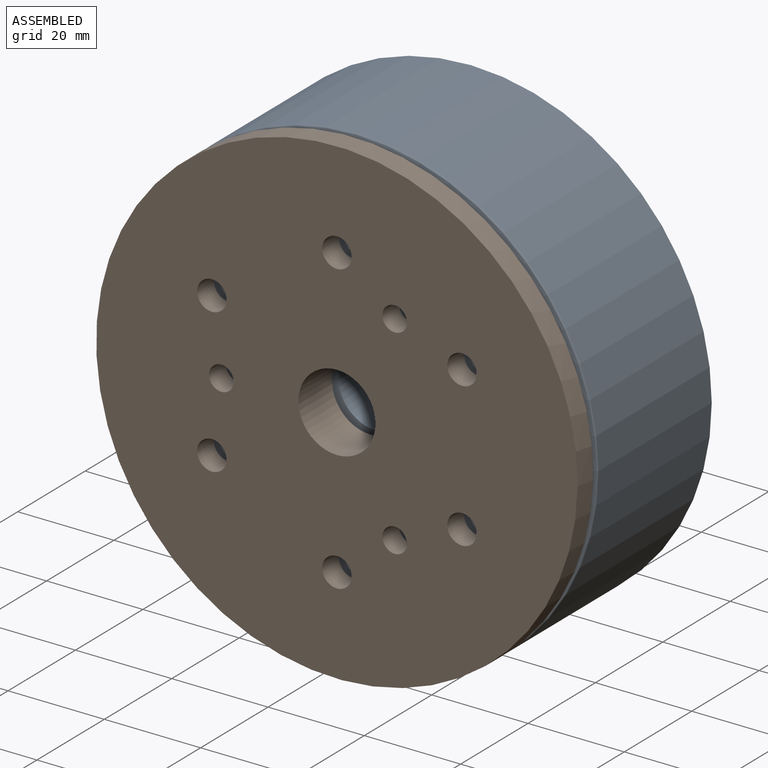
[diagram: assembled view]
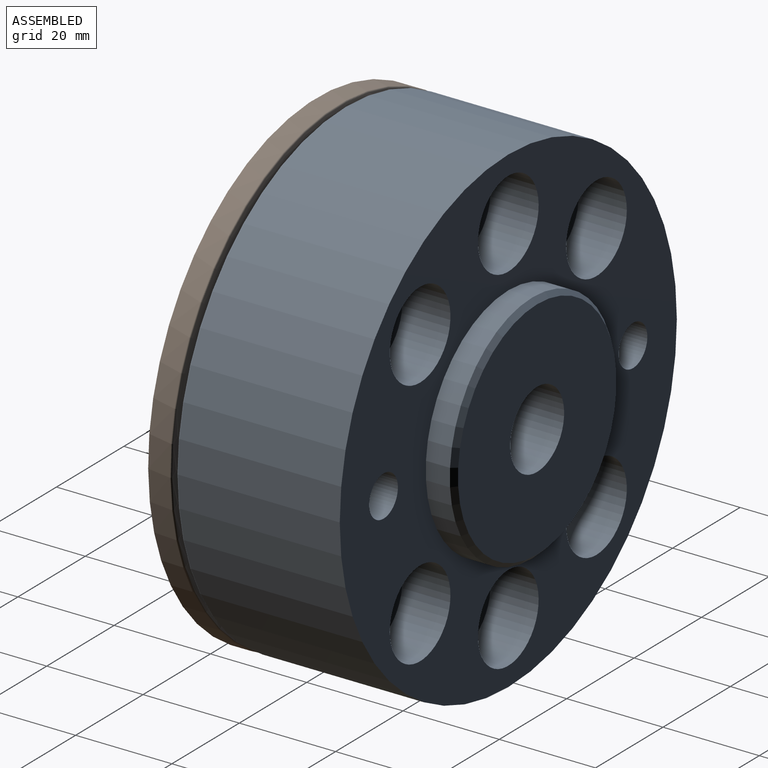
[diagram: assembled view, second angle]
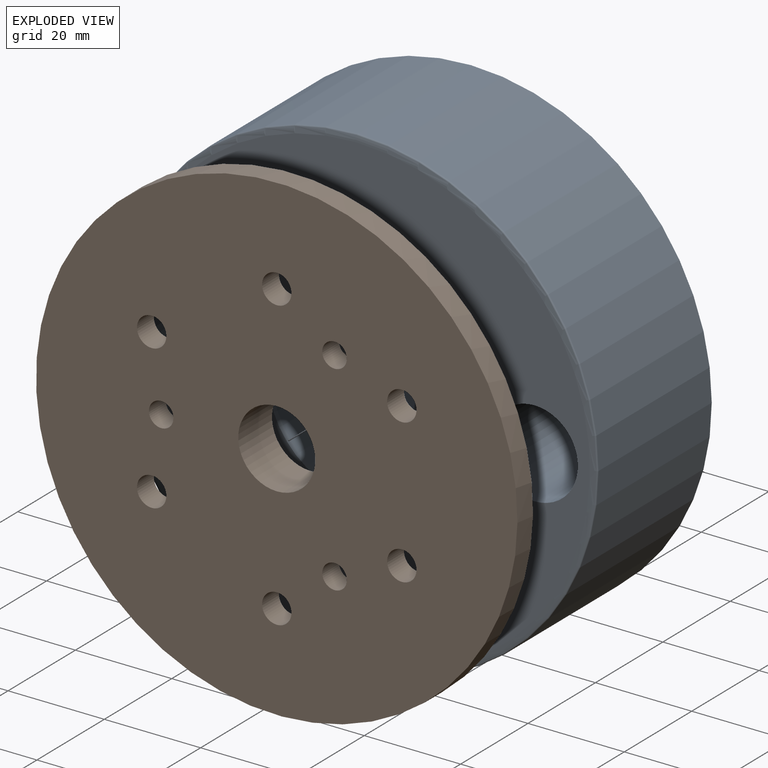
[diagram: exploded view]
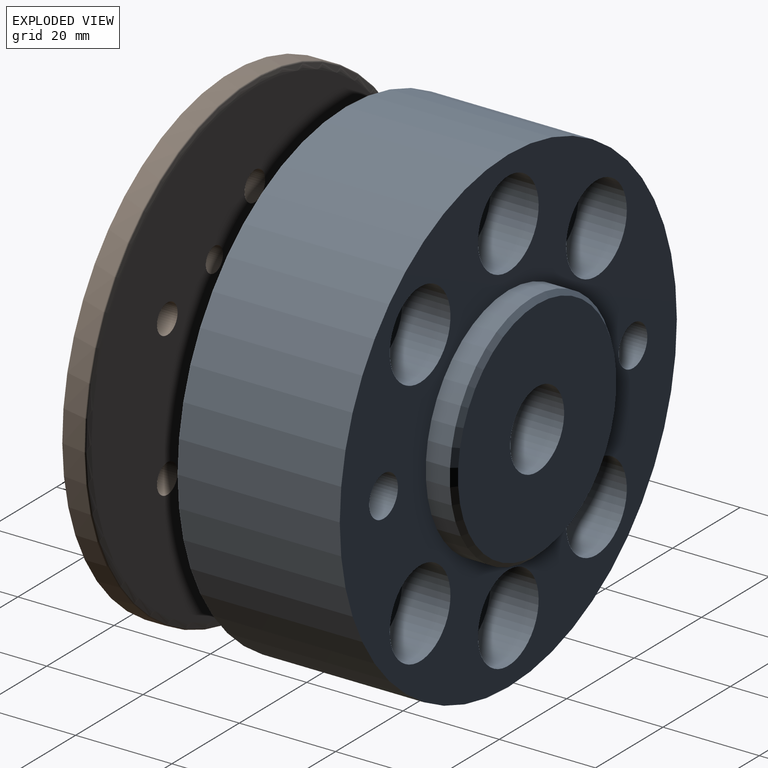
[diagram: exploded view, second angle]
ASSEMBLY  parts=2 mates=2
PART A: 48 faces, bbox 112.7x40x112.7 mm
  f0: cone r=0mm half-angle=59deg, axis (0,1,0), area 16.2mm2, adj f1
  f1: cylinder r=2.1mm len=11.6mm, axis (0,1,0), area 153.1mm2, adj f0,f29
  f2: cone r=0mm half-angle=59deg, axis (0,1,0), area 16.2mm2, adj f3
  f3: cylinder r=2.1mm len=11.6mm, axis (0,1,0), area 153.1mm2, adj f2,f29
  f4: cylinder r=4.25mm len=13mm, axis (0,1,0), area 347.1mm2, adj f5,f28
  f5: plane 18x18mm, normal (0,1,0), area 197.7mm2, adj f4,f6
  f6: cylinder r=9mm len=21mm, axis (0,1,0), area 1187.5mm2, adj f5,f29
  f7: cylinder r=9mm len=18mm, axis (0,-1,0), area 565.5mm2, adj f8,f28
  f8: plane 18x18mm, normal (0,-1,0), area 254.5mm2, adj f7
  f9: cylinder r=9mm len=18mm, axis (0,-1,0), area 565.5mm2, adj f10,f28
  f10: plane 18x18mm, normal (0,-1,0), area 254.5mm2, adj f9
  f11: cylinder r=9mm len=18mm, axis (0,-1,0), area 565.5mm2, adj f12,f28
  f12: plane 18x18mm, normal (0,-1,0), area 254.5mm2, adj f11
  f13: cylinder r=9mm len=18mm, axis (0,-1,0), area 565.5mm2, adj f14,f28
  f14: plane 18x18mm, normal (0,-1,0), area 254.5mm2, adj f13
  f15: cylinder r=9mm len=18mm, axis (0,-1,0), area 565.5mm2, adj f16,f28
  f16: plane 18x18mm, normal (0,-1,0), area 254.5mm2, adj f15
  f17: cone r=0mm half-angle=59deg, axis (0,1,0), area 22.9mm2, adj f18
  f18: cylinder r=2.5mm len=12mm, axis (0,1,0), area 188.5mm2, adj f17,f29
  f19: cone r=0mm half-angle=59deg, axis (0,1,0), area 22.9mm2, adj f20
  f20: cylinder r=2.5mm len=12mm, axis (0,1,0), area 188.5mm2, adj f19,f29
  f21: cone r=0mm half-angle=59deg, axis (0,1,0), area 22.9mm2, adj f22
  f22: cylinder r=2.5mm len=12mm, axis (0,1,0), area 188.5mm2, adj f21,f29
  f23: cone r=0mm half-angle=59deg, axis (0,1,0), area 22.9mm2, adj f24
  f24: cylinder r=2.5mm len=12mm, axis (0,1,0), area 188.5mm2, adj f23,f29
  f25: cone r=0mm half-angle=59deg, axis (0,1,0), area 22.9mm2, adj f26
  f26: cylinder r=2.5mm len=12mm, axis (0,1,0), area 188.5mm2, adj f25,f29
  f27: cylinder r=50mm len=100mm, axis (0,-1,0), area 10538.2mm2, adj f28,f31
  f28: plane 100x100mm, normal (0,-1,0), area 4327.9mm2, adj f4,f7,f9,f11,f13,f15,f27,f34
  f29: plane 97x97mm, normal (0,1,0), area 5646.3mm2, adj f1,f3,f6,f18,f20,f22,f24,f26
  f30: torus R=48.5mm, axis (0,-1,0), area 398.6mm2, adj f29,f31
  f31: torus R=49.7mm, axis (0,1,0), area 123.5mm2, adj f27,f30
  f32: cone r=0mm half-angle=59deg, axis (0,1,0), area 22.9mm2, adj f33
  f33: cylinder r=2.5mm len=12mm, axis (0,1,0), area 188.5mm2, adj f29,f32
  f34: cylinder r=4.25mm len=13mm, axis (0,1,0), area 347.1mm2, adj f28,f35
  f35: plane 18x18mm, normal (0,1,0), area 197.7mm2, adj f34,f36
  f36: cylinder r=9mm len=21mm, axis (0,1,0), area 1187.5mm2, adj f29,f35
  f37: cylinder r=9mm len=18mm, axis (0,-1,0), area 565.5mm2, adj f28,f38
  f38: plane 18x18mm, normal (0,-1,0), area 254.5mm2, adj f37
  f39: cylinder r=24.5mm len=49mm, axis (0,1,0), area 769.7mm2, adj f28,f44
  f40: plane 47x47mm, normal (0,-1,0), area 1533.9mm2, adj f41,f44
  f41: cylinder r=8mm len=34mm, axis (0,1,0), area 1709mm2, adj f40,f42
  f42: plane 36x36mm, normal (0,1,0), area 816.8mm2, adj f41,f43
  f43: cylinder r=18mm len=36mm, axis (0,1,0), area 622mm2, adj f42,f45
  f44: cone r=23.5mm half-angle=45deg, axis (0,1,0), area 213.3mm2, adj f39,f40
  f45: cone r=18mm half-angle=45deg, axis (0,1,0), area 81.1mm2, adj f29,f43
  f46: cone r=0mm half-angle=59deg, axis (0,1,0), area 16.2mm2, adj f47
  f47: cylinder r=2.1mm len=11.6mm, axis (0,1,0), area 153.1mm2, adj f29,f46
PART B: 18 faces, bbox 112.7x10x112.7 mm
  f0: cylinder r=2.55mm len=5.1mm, axis (0,-1,0), area 80.1mm2, adj f7,f10
  f1: cylinder r=2.55mm len=5.1mm, axis (0,-1,0), area 80.1mm2, adj f7,f10
  f2: cylinder r=3.05mm len=6.1mm, axis (0,-1,0), area 95.8mm2, adj f7,f10
  f3: cylinder r=3.05mm len=6.1mm, axis (0,-1,0), area 95.8mm2, adj f7,f10
  f4: cylinder r=3.05mm len=6.1mm, axis (0,-1,0), area 95.8mm2, adj f7,f10
  f5: cylinder r=3.05mm len=6.1mm, axis (0,-1,0), area 95.8mm2, adj f7,f10
  f6: cylinder r=3.05mm len=6.1mm, axis (0,-1,0), area 95.8mm2, adj f7,f10
  f7: plane 100x100mm, normal (0,1,0), area 7416.3mm2, adj f0,f1,f2,f3,f4,f5,f6,f8
  f8: cylinder r=50mm len=100mm, axis (0,-1,0), area 1427.6mm2, adj f7,f17
  f9: torus R=48.5mm, axis (0,-1,0), area 398.6mm2, adj f10,f17
  f10: plane 97x97mm, normal (0,-1,0), area 6135.3mm2, adj f0,f1,f2,f3,f4,f5,f6,f9
  f11: cylinder r=18mm len=36mm, axis (0,1,0), area 508.9mm2, adj f10,f15
  f12: plane 35x35mm, normal (0,-1,0), area 761.1mm2, adj f13,f15
  f13: cylinder r=8mm len=16mm, axis (0,-1,0), area 502.7mm2, adj f7,f12
  f14: cylinder r=3.05mm len=6.1mm, axis (0,-1,0), area 95.8mm2, adj f7,f10
  f15: cone r=18mm half-angle=45deg, axis (0,1,0), area 78.9mm2, adj f11,f12
  f16: cylinder r=2.55mm len=5.1mm, axis (0,-1,0), area 80.1mm2, adj f7,f10
  f17: torus R=49.7mm, axis (0,1,0), area 123.5mm2, adj f8,f9
PLACE A rot(axis=(-1,0,0),180deg) t=(25.81,111.94,93.93)mm
PLACE B rot(axis=(-0.5,0,0.87),180deg) t=(25.81,77.14,93.93)mm
MATE cylindrical B.f11 <-> A.f27  axis (0,-1,0) through (25.81,79.39,93.93)mm
MATE parallel B.f2 <-> A.f21  axis (0,1,0) through (-0.17,77.14,78.93)mm
